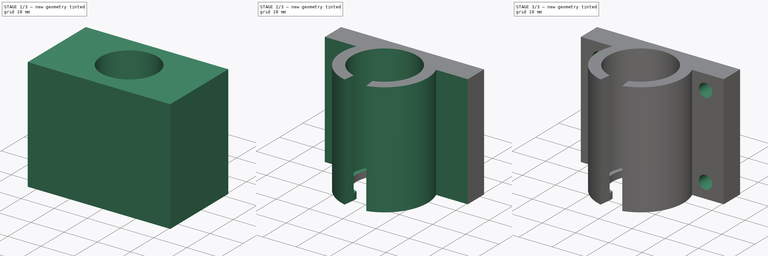
[diagram: build sequence overview — one tinted view per stage of 3, left to right]
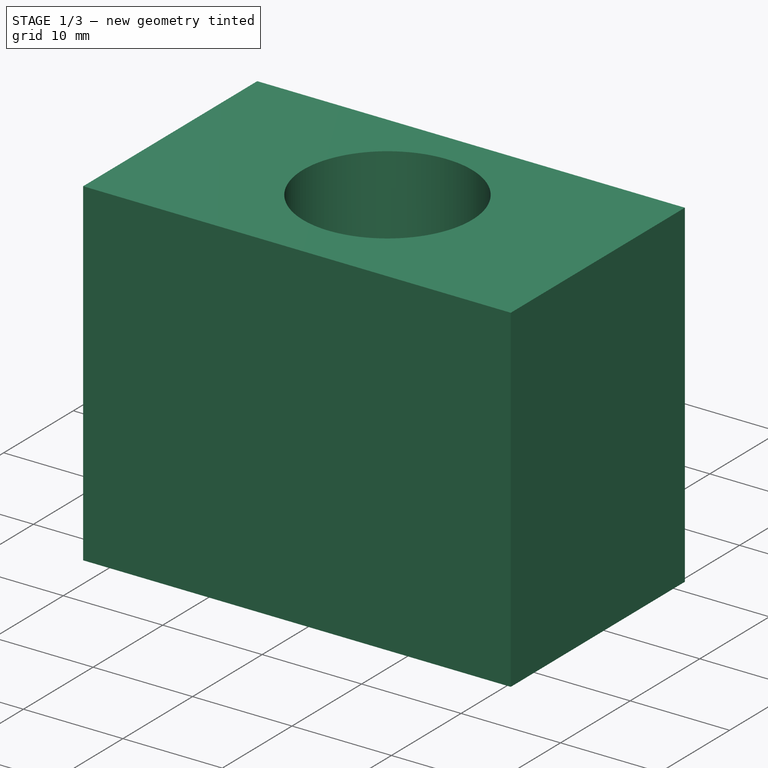
[diagram: stage 1 of 3 — iso view after this stage's code; geometry added in this stage tinted green]
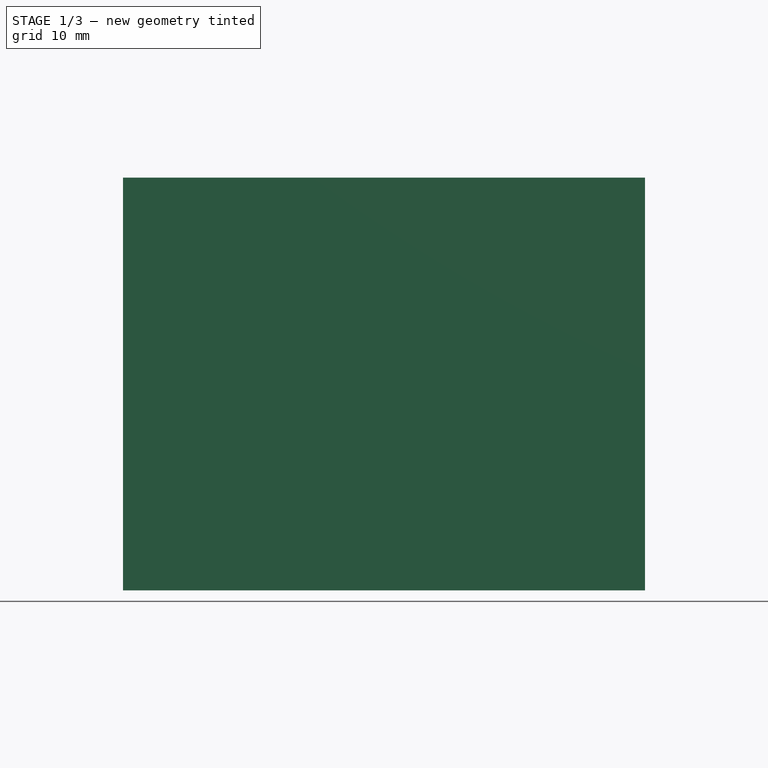
[diagram: stage 1 of 3 — front view after this stage's code; geometry added in this stage tinted green]
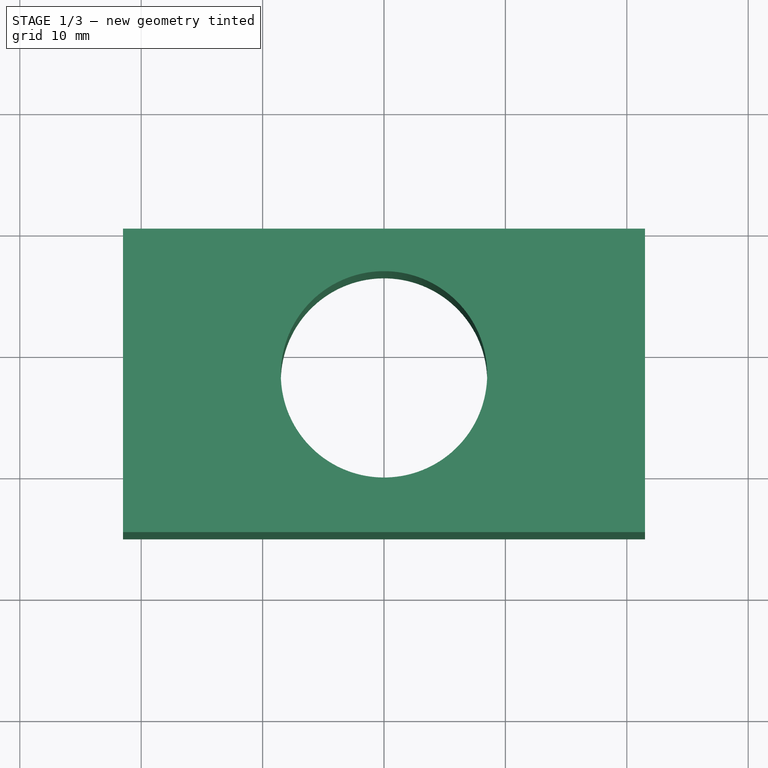
[diagram: stage 1 of 3 — top view after this stage's code; geometry added in this stage tinted green]
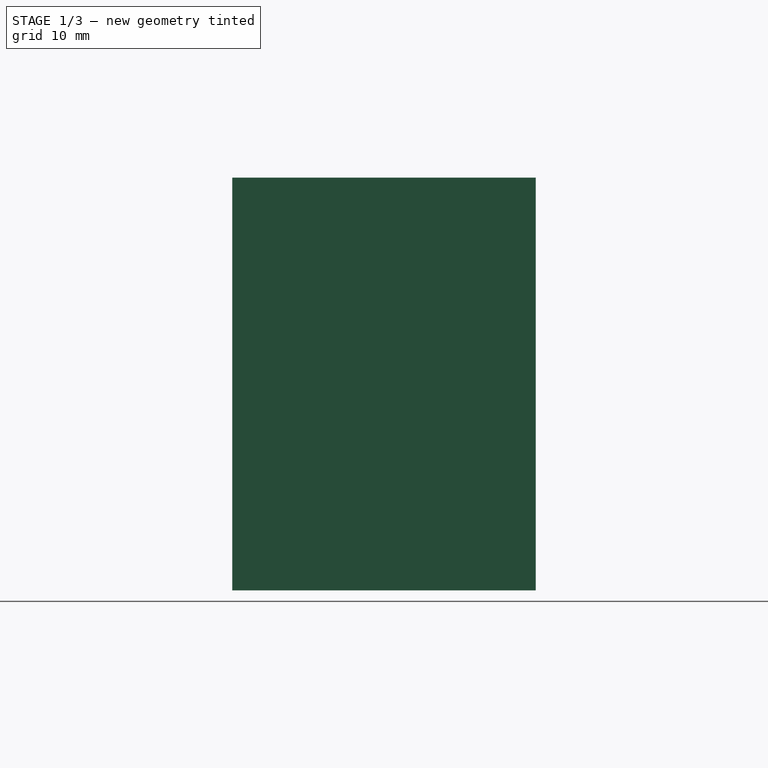
[diagram: stage 1 of 3 — right view after this stage's code; geometry added in this stage tinted green]
FCSTD DOCUMENT
Label: Bearing_Holder_fatBase_with_thinBearingHole_and_oversizemoutingholes
objects: Sketcher::SketchObject×6, PartDesign::Pocket×5, PartDesign::Pad×1, PartDesign::LinearPattern×1, PartDesign::Mirrored×1, PartDesign::MultiTransform×1
note: 21 computed .brp shape members not serialized (recipe doc carries the construction recipe); baked Part::Feature solids carry a one-line shape summary decoded from their .brp

FEATURE [Sketcher::SketchObject] Sketch
  sketch-geometry (4):
    g0: LineSegment StartX=-21.5 StartY=0 StartZ=0 EndX=21.5 EndY=0 EndZ=0
    g1: LineSegment StartX=21.5 StartY=0 StartZ=0 EndX=21.5 EndY=-25 EndZ=0
    g2: LineSegment StartX=-21.5 StartY=-25 StartZ=0 EndX=-21.5 EndY=0 EndZ=0
    g3: LineSegment StartX=21.5 StartY=-25 StartZ=0 EndX=-21.5 EndY=-25 EndZ=0
  constraints (12):
    c: Coincident(g0,g1)
    c: Coincident(g3,g2)
    c: Coincident(g2,g0)
    c: Horizontal(g0)
    c: Vertical(g1)
    c: Vertical(g2)
    c: PointOnObject(g0,g-1)
    c: DistanceX(g0) = 43
    c: DistanceY(g1) = -25
    c: Coincident(g3,g1)
    c: Horizontal(g3)
    c: Symmetric(g2,g1,g-2)
FEATURE [PartDesign::Pad] Pad
  Length = 34
  Length2 = 100
  Sketch = -> Sketch
  Type = 0
FEATURE [Sketcher::SketchObject] Sketch001
  Placement = pos=(0,0,34) rot=(0,0,1;0rad)
  Support = -> Pad [Face6]
  sketch-geometry (1):
    g0: Circle CenterX=0 CenterY=-12 CenterZ=0 NormalX=0 NormalY=0 NormalZ=1 Radius=8.5
  constraints (3):
    c: PointOnObject(g0,g-2)
    c: Radius(g0) = 8.5
    c: DistanceY(g-1,g0) = -12
FEATURE [PartDesign::Pocket] Pocket
  Length = 5
  Sketch = -> Sketch001
  Type = 1
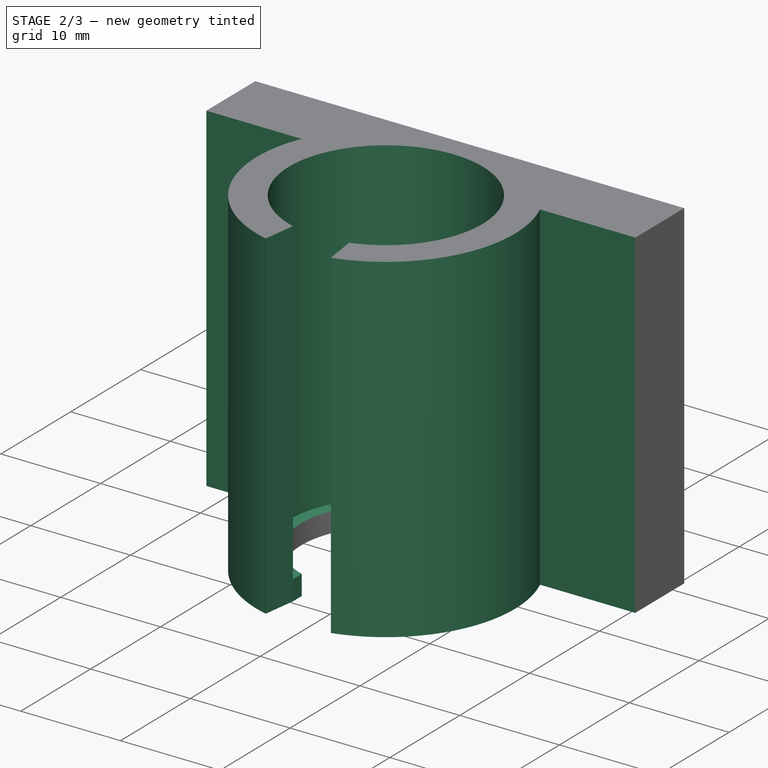
[diagram: stage 2 of 3 — iso view after this stage's code; geometry added in this stage tinted green]
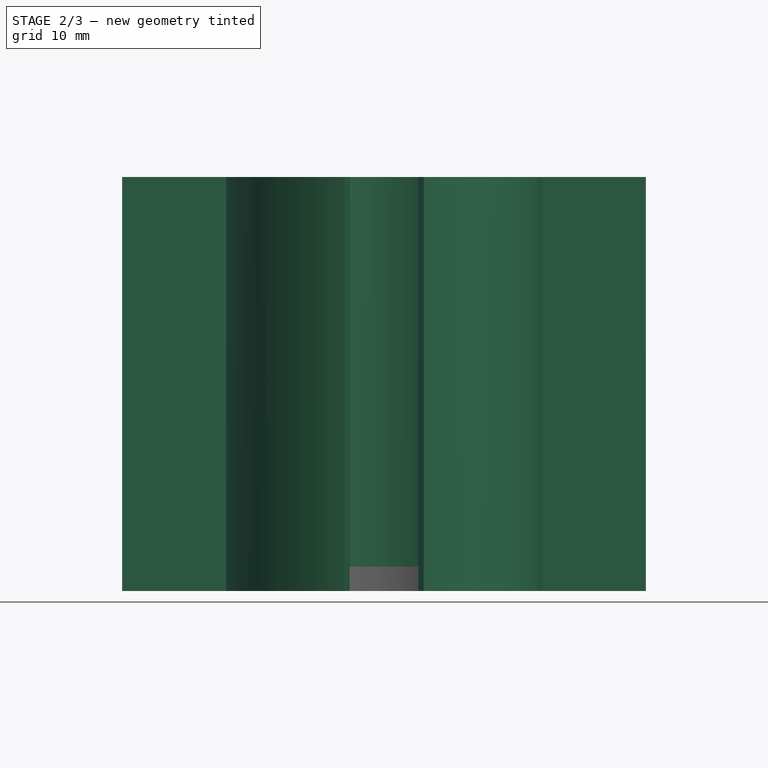
[diagram: stage 2 of 3 — front view after this stage's code; geometry added in this stage tinted green]
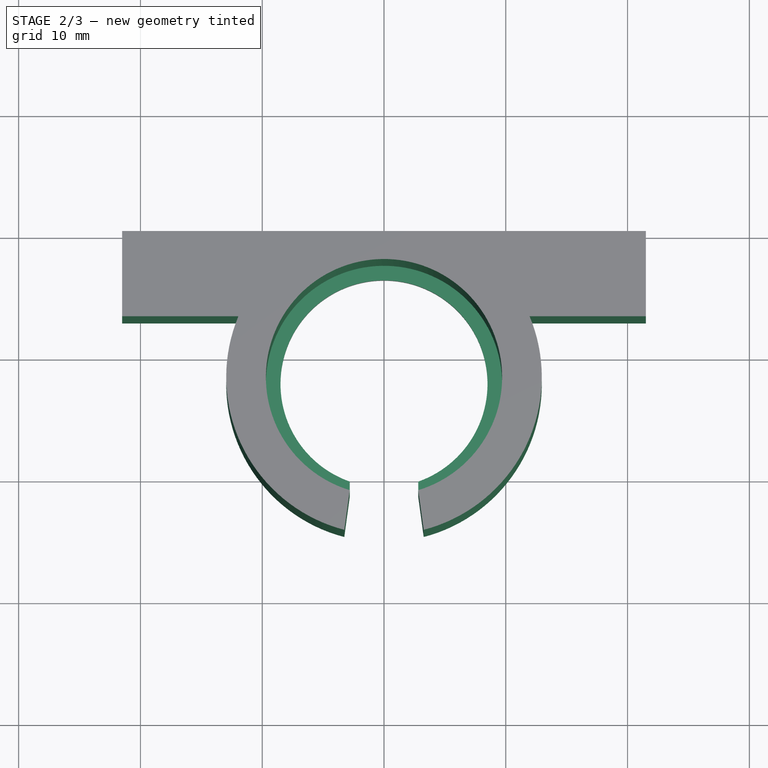
[diagram: stage 2 of 3 — top view after this stage's code; geometry added in this stage tinted green]
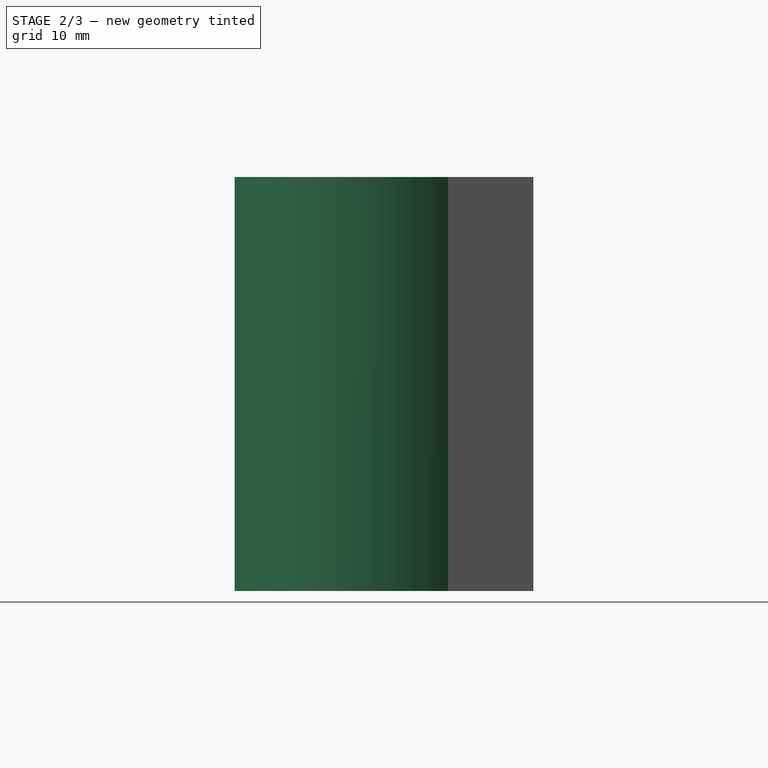
[diagram: stage 2 of 3 — right view after this stage's code; geometry added in this stage tinted green]
FEATURE [Sketcher::SketchObject] Sketch002
  ExternalGeometry = -> [Pocket]
  Placement = pos=(0,0,34) rot=(0,0,1;0rad)
  Support = -> Pocket [Face5]
  sketch-geometry (1):
    g0: Circle CenterX=0 CenterY=-12 CenterZ=0 NormalX=0 NormalY=0 NormalZ=1 Radius=9.7
  constraints (2):
    c: Radius(g0) = 9.7
    c: Coincident(g0,g-3)
FEATURE [PartDesign::Pocket] Pocket001
  Length = 32
  Sketch = -> Sketch002
  Type = 0
FEATURE [Sketcher::SketchObject] Sketch005
  Placement = pos=(0,0,34) rot=(0,0,1;0rad)
  Support = -> Pocket001 [Face5]
  sketch-geometry (6):
    g0: LineSegment StartX=-23.1816 StartY=-7 StartZ=0 EndX=-11.9534 EndY=-7 EndZ=0
    g1: LineSegment StartX=23.2759 StartY=-7 StartZ=0 EndX=23.2759 EndY=-27.3341 EndZ=0
    g2: LineSegment StartX=23.2759 StartY=-27.3341 StartZ=0 EndX=-23.1816 EndY=-27.3341 EndZ=0
    g3: LineSegment StartX=-23.1816 StartY=-27.3341 StartZ=0 EndX=-23.1816 EndY=-7 EndZ=0
    g4: ArcOfCircle CenterX=0 CenterY=-12 CenterZ=0 NormalX=0 NormalY=0 NormalZ=1 Radius=12.957 StartAngle=2.74542 EndAngle=6.67936
    g5: LineSegment StartX=11.9534 StartY=-7 StartZ=0 EndX=23.2759 EndY=-7 EndZ=0
  constraints (12):
    c: Coincident(g5,g1)
    c: Coincident(g1,g2)
    c: Coincident(g2,g3)
    c: Coincident(g3,g0)
    c: Horizontal(g0)
    c: Horizontal(g2)
    c: Vertical(g1)
    c: Vertical(g3)
    c: Coincident(g0,g4)
    c: Coincident(g5,g4)
    c: Tangent(g0,g5)
    c: Radius(g4) = 12.957
FEATURE [PartDesign::Pocket] Pocket002
  Length = 5
  Sketch = -> Sketch005
  Type = 1
FEATURE [Sketcher::SketchObject] Sketch003
  ExternalGeometry = -> [Pocket002]
  Placement = pos=(0,0,34) rot=(0,0,1;0rad)
  Support = -> Pocket002 [Face5]
  sketch-geometry (7):
    g0: LineSegment StartX=-2.816 StartY=-19.2822 StartZ=0 EndX=2.816 EndY=-19.2822 EndZ=0
    g1: LineSegment StartX=3.46089 StartY=-26 StartZ=0 EndX=-3.46089 EndY=-26 EndZ=0
    g2: LineSegment StartX=-2.816 StartY=-21.2822 StartZ=0 EndX=-2.816 EndY=-19.2822 EndZ=0
    g3: GeomPoint [constr] X=0 Y=-19.2822 Z=0
    g4: LineSegment StartX=2.816 StartY=-19.2822 StartZ=0 EndX=2.816 EndY=-21.2822 EndZ=0
    g5: LineSegment StartX=-2.816 StartY=-21.2822 StartZ=0 EndX=-3.46089 EndY=-26 EndZ=0
    g6: LineSegment StartX=2.816 StartY=-21.2822 StartZ=0 EndX=3.46089 EndY=-26 EndZ=0
  constraints (19):
    c: Coincident(g2,g0)
    c: Horizontal(g1)
    c: Symmetric(g0,g0,g3)
    c: Horizontal(g0)
    c: Vertical(g2)
    c: PointOnObject(g3,g-2)
    c: Coincident(g4,g0)
    c: Vertical(g4)
    c: DistanceX(g0) = 5.632
    c: Symmetric(g1,g1,g-2)
    c: Coincident(g5,g2)
    c: Coincident(g5,g1)
    c: Coincident(g6,g4)
    c: Coincident(g6,g1)
    c: Angle(g5,g6) = 0.271706
    c: DistanceY(g1) = -26
    c: DistanceY(g2) = 2
    c: Equal(g4,g2)
    c: PointOnObject(g4,g-3)
FEATURE [PartDesign::Pocket] Pocket003
  Length = 5
  Sketch = -> Sketch003
  Type = 1
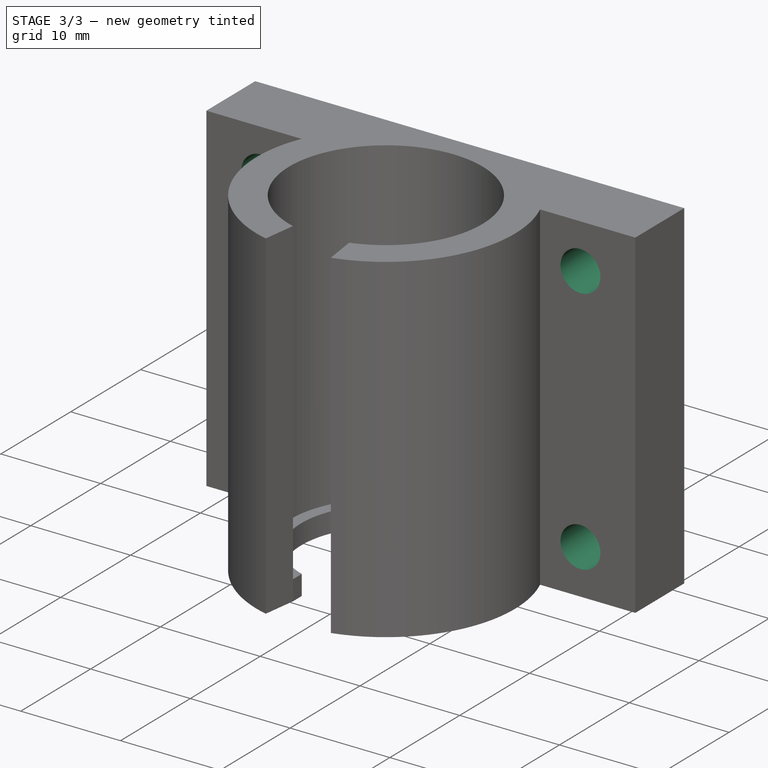
[diagram: stage 3 of 3 — iso view after this stage's code; geometry added in this stage tinted green]
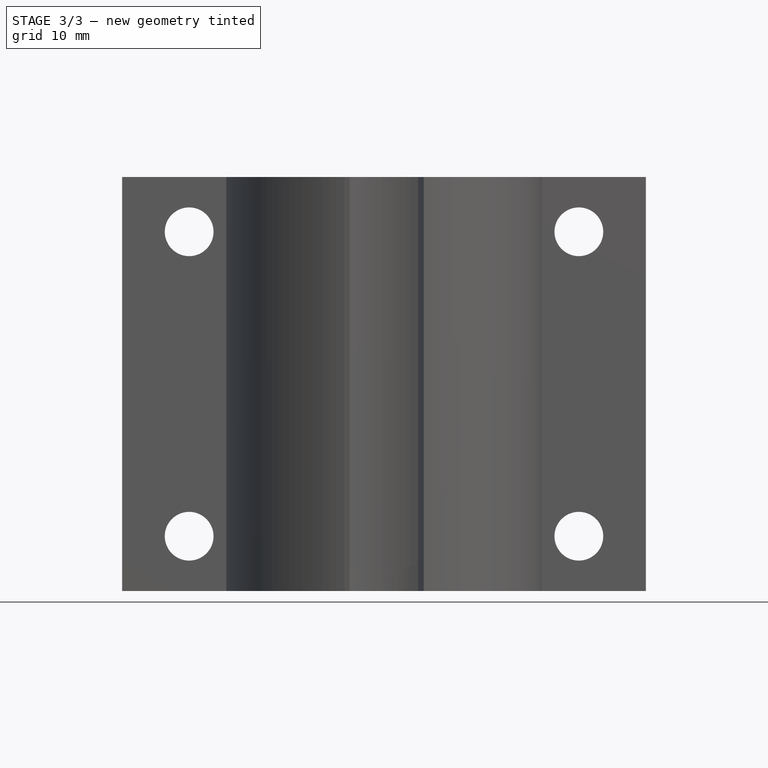
[diagram: stage 3 of 3 — front view after this stage's code; geometry added in this stage tinted green]
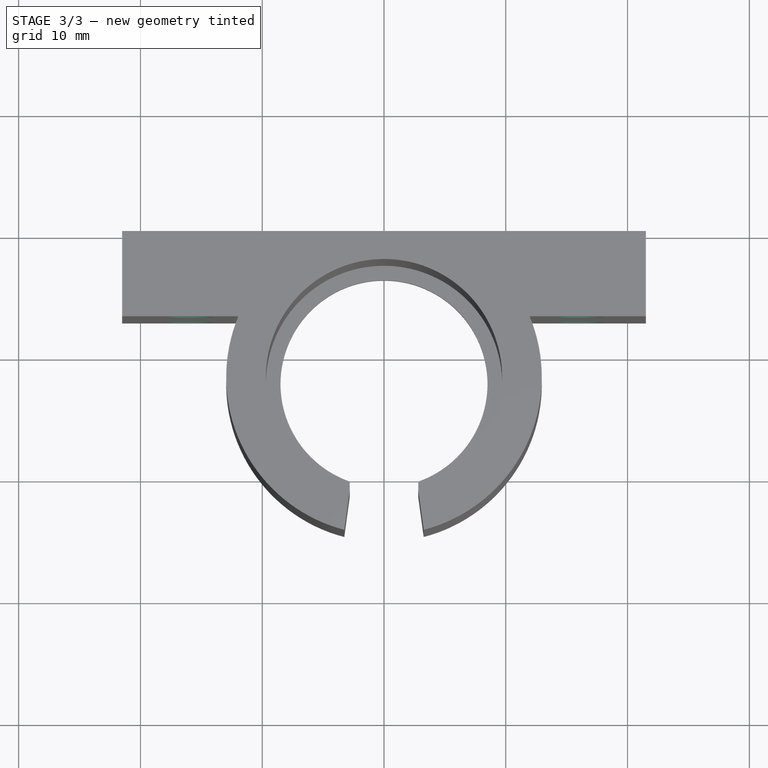
[diagram: stage 3 of 3 — top view after this stage's code; geometry added in this stage tinted green]
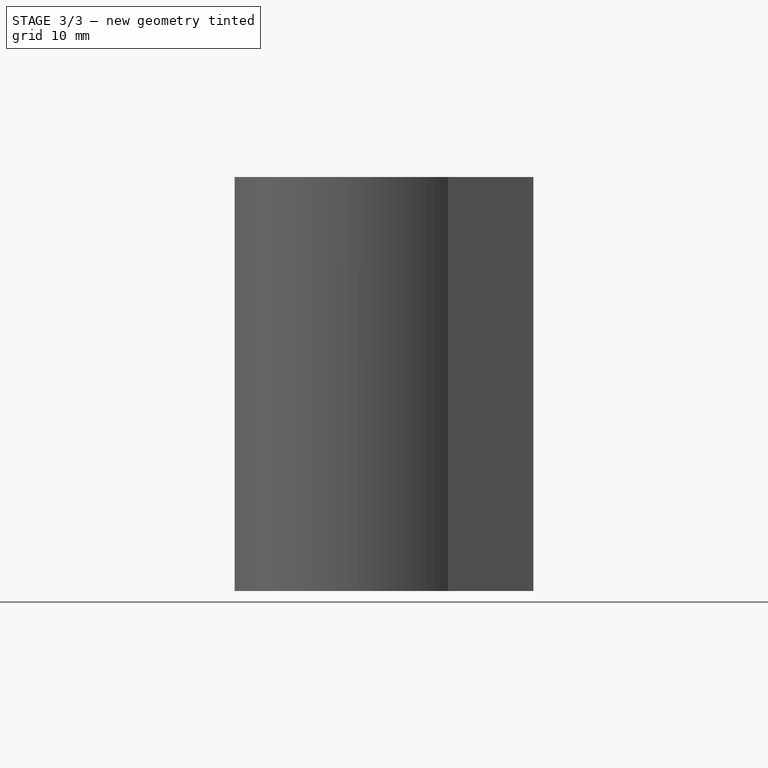
[diagram: stage 3 of 3 — right view after this stage's code; geometry added in this stage tinted green]
FEATURE [Sketcher::SketchObject] Sketch004
  ExternalGeometry = -> [Pocket003]
  Placement = pos=(0,-7,0) rot=(1,0,0;1.5708rad)
  Support = -> Pocket003 [Face6]
  sketch-geometry (1):
    g0: Circle CenterX=-16 CenterY=4.5 CenterZ=0 NormalX=0 NormalY=0 NormalZ=1 Radius=2
  constraints (3):
    c: Radius(g0) = 2
    c: DistanceX(g0) = -16
    c: DistanceY(g0,g-3) = -4.5
FEATURE [PartDesign::Pocket] Pocket004
  Length = 5
  Sketch = -> Sketch004
  Type = 1
FEATURE [PartDesign::LinearPattern] LinearPattern
  Direction = -> Pocket004 [Edge4]
  Length = 25
  Occurrences = 2
FEATURE [PartDesign::Mirrored] Mirrored
  StdMirrorPlane = YZ
FEATURE [PartDesign::MultiTransform] MultiTransform
  Originals = -> [Pocket004]
  Transformations = -> [LinearPattern,Mirrored]
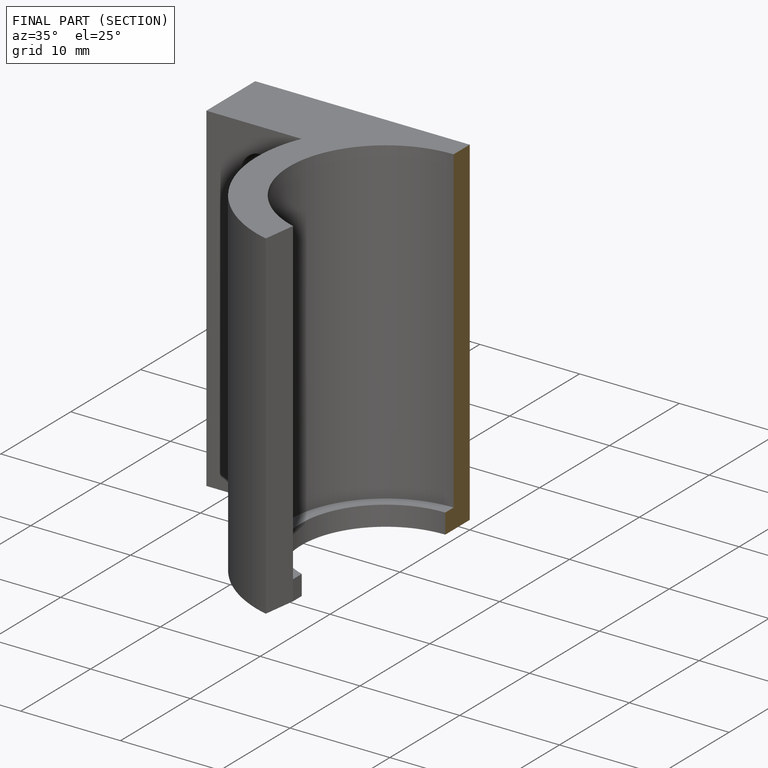
[diagram: finished part — half-section view (interior)]
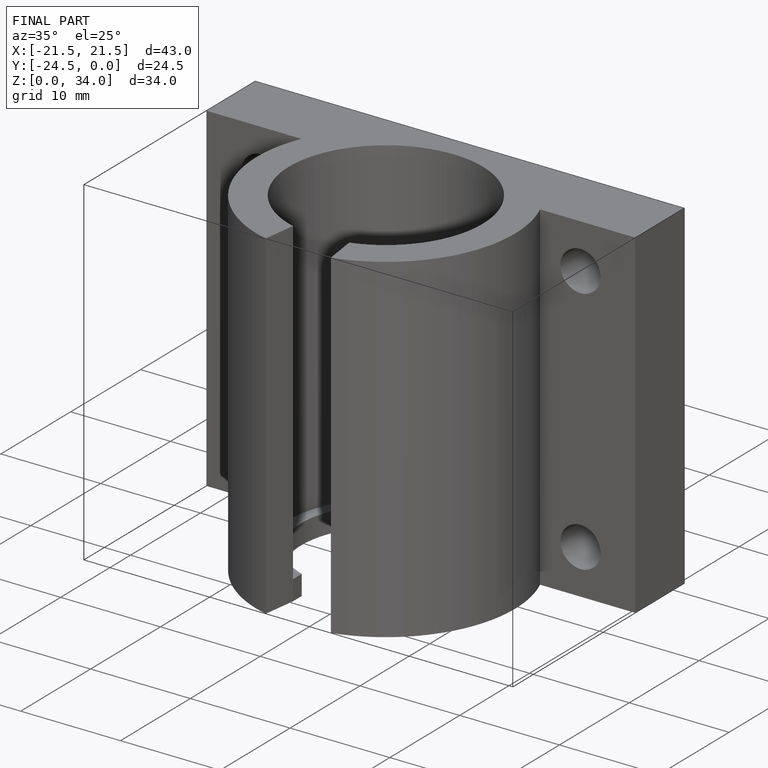
[diagram: finished part — iso view with bounding-box wireframe]
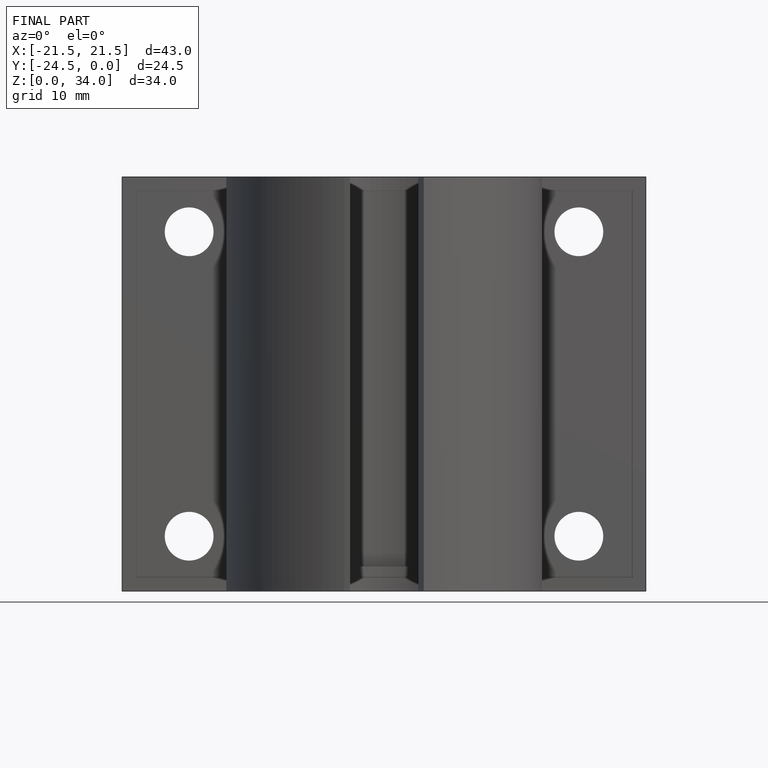
[diagram: finished part — front view with bounding-box wireframe]
